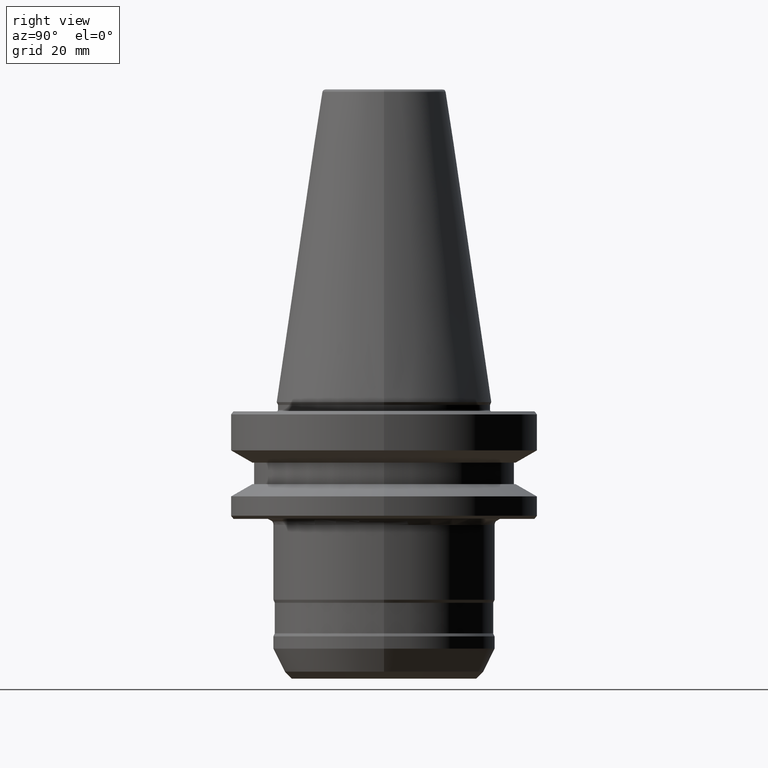
[diagram: clean part render]
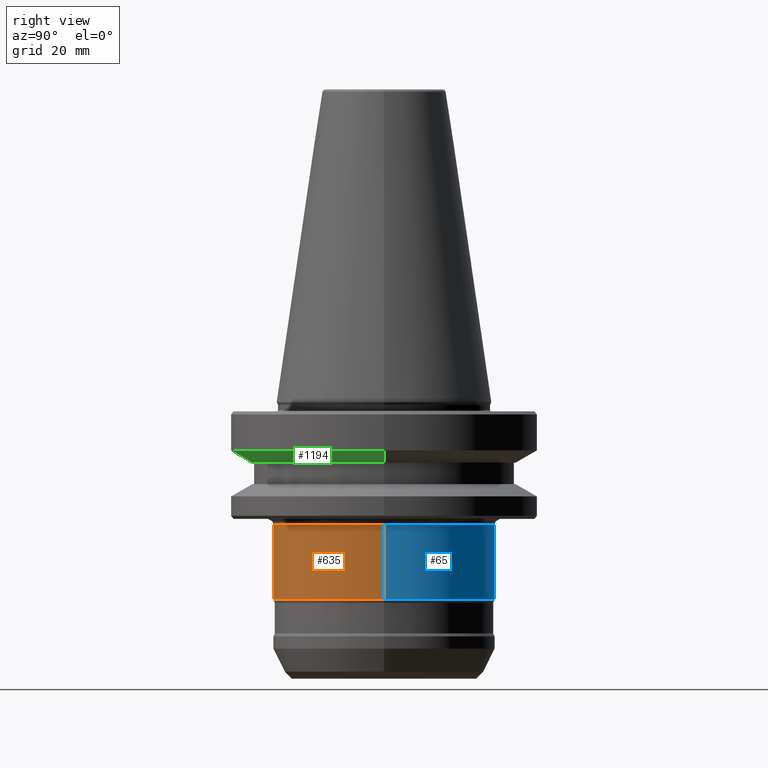
[diagram: same view with three faces highlighted in distinct colors, each labeled with its STEP entity id]
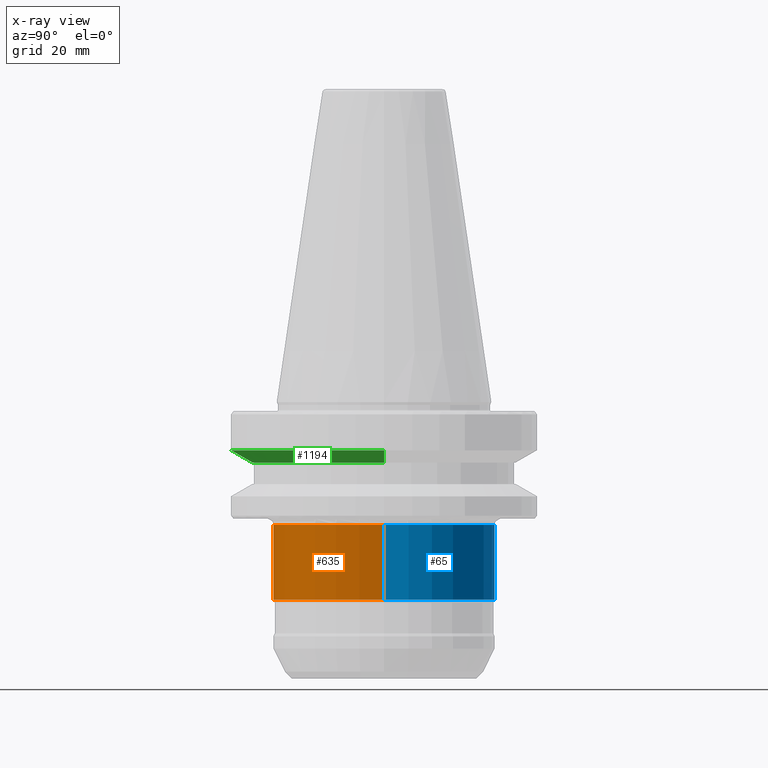
[diagram: x-ray of the same camera — body ghosted, the three highlighted faces saturated]
A machine part, right view with three faces highlighted in distinct colors.
The next image is the same camera in x-ray (body ghosted, the three faces saturated) — at least one of them is partly hidden behind the body in this view.
Their STEP definitions:

[orange] entity #635 — the highlighted cylindrical surface (partial cylindrical patch) has radius 36 mm, axis along (-0, -0, 1).
#14 = ORIENTED_EDGE ( 'NONE', *, *, #412, .T. ) ;
#18 = DIRECTION ( 'NONE',  ( -0.0000000000000000000, -0.0000000000000000000, 1.000000000000000000 ) ) ;
#41 = CIRCLE ( 'NONE', #890, 36.00000000322989300 ) ;
#68 = CARTESIAN_POINT ( 'NONE',  ( -36.00000000322989300, 4.408728477326019100E-015, 114.8991335799905900 ) ) ;
#158 = EDGE_CURVE ( 'NONE', #401, #473, #256, .T. ) ;
#161 = DIRECTION ( 'NONE',  ( -0.0000000000000000000, -0.0000000000000000000, 1.000000000000000000 ) ) ;
#179 = CARTESIAN_POINT ( 'NONE',  ( 0.0000000000000000000, 0.0000000000000000000, -40.00000000001426100 ) ) ;
#213 = DIRECTION ( 'NONE',  ( 1.000000000000000000, 0.0000000000000000000, 0.0000000000000000000 ) ) ;
#252 = CYLINDRICAL_SURFACE ( 'NONE', #993, 36.00000000322989300 ) ;
#256 = LINE ( 'NONE', #68, #995 ) ;
#274 = DIRECTION ( 'NONE',  ( 1.000000000000000000, 0.0000000000000000000, 0.0000000000000000000 ) ) ;
#303 = VERTEX_POINT ( 'NONE', #513 ) ;
#351 = ORIENTED_EDGE ( 'NONE', *, *, #158, .F. ) ;
#369 = DIRECTION ( 'NONE',  ( -0.0000000000000000000, -0.0000000000000000000, 1.000000000000000000 ) ) ;
#401 = VERTEX_POINT ( 'NONE', #1096 ) ;
#412 = EDGE_CURVE ( 'NONE', #401, #303, #1007, .T. ) ;
#420 = VERTEX_POINT ( 'NONE', #1209 ) ;
#435 = EDGE_CURVE ( 'NONE', #473, #420, #41, .T. ) ;
#451 = LINE ( 'NONE', #1237, #926 ) ;
#473 = VERTEX_POINT ( 'NONE', #1017 ) ;
#513 = CARTESIAN_POINT ( 'NONE',  ( 36.00000000322989300, 0.0000000000000000000, -64.33325419940462100 ) ) ;
#519 = FACE_OUTER_BOUND ( 'NONE', #754, .T. ) ;
#527 = ORIENTED_EDGE ( 'NONE', *, *, #1153, .T. ) ;
#549 = CARTESIAN_POINT ( 'NONE',  ( 0.0000000000000000000, 0.0000000000000000000, -64.33325419940462100 ) ) ;
#574 = DIRECTION ( 'NONE',  ( -0.0000000000000000000, -0.0000000000000000000, 1.000000000000000000 ) ) ;
#596 = DIRECTION ( 'NONE',  ( 1.000000000000000000, 0.0000000000000000000, 0.0000000000000000000 ) ) ;
#635 = ADVANCED_FACE ( 'NONE', ( #519 ), #252, .T. ) ;
#639 = CARTESIAN_POINT ( 'NONE',  ( 0.0000000000000000000, 0.0000000000000000000, 114.8991335799905900 ) ) ;
#754 = EDGE_LOOP ( 'NONE', ( #351, #14, #527, #796 ) ) ;
#796 = ORIENTED_EDGE ( 'NONE', *, *, #435, .F. ) ;
#824 = AXIS2_PLACEMENT_3D ( 'NONE', #549, #18, #596 ) ;
#890 = AXIS2_PLACEMENT_3D ( 'NONE', #179, #161, #213 ) ;
#926 = VECTOR ( 'NONE', #574, 1000.000000000000000 ) ;
#993 = AXIS2_PLACEMENT_3D ( 'NONE', #639, #369, #274 ) ;
#995 = VECTOR ( 'NONE', #1070, 1000.000000000000000 ) ;
#1007 = CIRCLE ( 'NONE', #824, 36.00000000322989300 ) ;
#1017 = CARTESIAN_POINT ( 'NONE',  ( -36.00000000322989300, 4.531193157240740900E-015, -40.00000000001426100 ) ) ;
#1070 = DIRECTION ( 'NONE',  ( -0.0000000000000000000, -0.0000000000000000000, 1.000000000000000000 ) ) ;
#1096 = CARTESIAN_POINT ( 'NONE',  ( -36.00000000322989300, 4.408728477326019100E-015, -64.33325419940462100 ) ) ;
#1153 = EDGE_CURVE ( 'NONE', #303, #420, #451, .T. ) ;
#1209 = CARTESIAN_POINT ( 'NONE',  ( 36.00000000322989300, 0.0000000000000000000, -40.00000000001426100 ) ) ;
#1237 = CARTESIAN_POINT ( 'NONE',  ( 36.00000000322989300, 0.0000000000000000000, 114.8991335799905900 ) ) ;

[blue] entity #65 — the highlighted cylindrical surface (partial cylindrical patch) has radius 36 mm, axis along (-0, -0, 1).
#65 = ADVANCED_FACE ( 'NONE', ( #579 ), #830, .T. ) ;
#68 = CARTESIAN_POINT ( 'NONE',  ( -36.00000000322989300, 4.408728477326019100E-015, 114.8991335799905900 ) ) ;
#75 = DIRECTION ( 'NONE',  ( 1.000000000000000000, 0.0000000000000000000, 0.0000000000000000000 ) ) ;
#85 = CARTESIAN_POINT ( 'NONE',  ( 0.0000000000000000000, 0.0000000000000000000, -64.33325419940462100 ) ) ;
#124 = ORIENTED_EDGE ( 'NONE', *, *, #1153, .F. ) ;
#158 = EDGE_CURVE ( 'NONE', #401, #473, #256, .T. ) ;
#200 = DIRECTION ( 'NONE',  ( 1.000000000000000000, 0.0000000000000000000, 0.0000000000000000000 ) ) ;
#239 = EDGE_LOOP ( 'NONE', ( #1196, #868, #1029, #124 ) ) ;
#256 = LINE ( 'NONE', #68, #995 ) ;
#303 = VERTEX_POINT ( 'NONE', #513 ) ;
#401 = VERTEX_POINT ( 'NONE', #1096 ) ;
#420 = VERTEX_POINT ( 'NONE', #1209 ) ;
#451 = LINE ( 'NONE', #1237, #926 ) ;
#473 = VERTEX_POINT ( 'NONE', #1017 ) ;
#513 = CARTESIAN_POINT ( 'NONE',  ( 36.00000000322989300, 0.0000000000000000000, -64.33325419940462100 ) ) ;
#574 = DIRECTION ( 'NONE',  ( -0.0000000000000000000, -0.0000000000000000000, 1.000000000000000000 ) ) ;
#579 = FACE_OUTER_BOUND ( 'NONE', #239, .T. ) ;
#654 = DIRECTION ( 'NONE',  ( -0.0000000000000000000, -0.0000000000000000000, 1.000000000000000000 ) ) ;
#703 = DIRECTION ( 'NONE',  ( -0.0000000000000000000, -0.0000000000000000000, 1.000000000000000000 ) ) ;
#708 = EDGE_CURVE ( 'NONE', #303, #401, #960, .T. ) ;
#724 = AXIS2_PLACEMENT_3D ( 'NONE', #1143, #703, #200 ) ;
#804 = DIRECTION ( 'NONE',  ( -0.0000000000000000000, -0.0000000000000000000, 1.000000000000000000 ) ) ;
#820 = AXIS2_PLACEMENT_3D ( 'NONE', #1224, #654, #75 ) ;
#830 = CYLINDRICAL_SURFACE ( 'NONE', #724, 36.00000000322989300 ) ;
#868 = ORIENTED_EDGE ( 'NONE', *, *, #158, .T. ) ;
#926 = VECTOR ( 'NONE', #574, 1000.000000000000000 ) ;
#960 = CIRCLE ( 'NONE', #1180, 36.00000000322989300 ) ;
#995 = VECTOR ( 'NONE', #1070, 1000.000000000000000 ) ;
#1017 = CARTESIAN_POINT ( 'NONE',  ( -36.00000000322989300, 4.531193157240740900E-015, -40.00000000001426100 ) ) ;
#1029 = ORIENTED_EDGE ( 'NONE', *, *, #1068, .F. ) ;
#1068 = EDGE_CURVE ( 'NONE', #420, #473, #1086, .T. ) ;
#1070 = DIRECTION ( 'NONE',  ( -0.0000000000000000000, -0.0000000000000000000, 1.000000000000000000 ) ) ;
#1086 = CIRCLE ( 'NONE', #820, 36.00000000322989300 ) ;
#1096 = CARTESIAN_POINT ( 'NONE',  ( -36.00000000322989300, 4.408728477326019100E-015, -64.33325419940462100 ) ) ;
#1119 = DIRECTION ( 'NONE',  ( 1.000000000000000000, 0.0000000000000000000, 0.0000000000000000000 ) ) ;
#1143 = CARTESIAN_POINT ( 'NONE',  ( 0.0000000000000000000, 0.0000000000000000000, 114.8991335799905900 ) ) ;
#1153 = EDGE_CURVE ( 'NONE', #303, #420, #451, .T. ) ;
#1180 = AXIS2_PLACEMENT_3D ( 'NONE', #85, #804, #1119 ) ;
#1196 = ORIENTED_EDGE ( 'NONE', *, *, #708, .T. ) ;
#1209 = CARTESIAN_POINT ( 'NONE',  ( 36.00000000322989300, 0.0000000000000000000, -40.00000000001426100 ) ) ;
#1224 = CARTESIAN_POINT ( 'NONE',  ( 0.0000000000000000000, 0.0000000000000000000, -40.00000000001426100 ) ) ;
#1237 = CARTESIAN_POINT ( 'NONE',  ( 36.00000000322989300, 0.0000000000000000000, 114.8991335799905900 ) ) ;

[green] entity #1194 — the highlighted conical surface has half-angle 60 deg.
#37 = CARTESIAN_POINT ( 'NONE',  ( 49.99999999999982200, 0.0000000000000000000, -15.70022000322791900 ) ) ;
#129 = DIRECTION ( 'NONE',  ( -0.8660254037844348200, 1.060575238724902200E-016, 0.5000000000000066600 ) ) ;
#154 = CARTESIAN_POINT ( 'NONE',  ( 49.99999999999982200, 0.0000000000000000000, -15.70022000322791900 ) ) ;
#219 = CARTESIAN_POINT ( 'NONE',  ( -49.99999999999982200, 6.123233995736744000E-015, -15.70022000322791900 ) ) ;
#311 = VERTEX_POINT ( 'NONE', #1053 ) ;
#350 = AXIS2_PLACEMENT_3D ( 'NONE', #838, #690, #907 ) ;
#386 = EDGE_CURVE ( 'NONE', #1199, #311, #818, .T. ) ;
#474 = AXIS2_PLACEMENT_3D ( 'NONE', #487, #1247, #482 ) ;
#482 = DIRECTION ( 'NONE',  ( 1.000000000000000000, 0.0000000000000000000, 0.0000000000000000000 ) ) ;
#487 = CARTESIAN_POINT ( 'NONE',  ( 0.0000000000000000000, 0.0000000000000000000, -15.70022000322791900 ) ) ;
#493 = CARTESIAN_POINT ( 'NONE',  ( -43.07217782649175300, 5.699027233244308300E-015, -19.70000000000073100 ) ) ;
#580 = EDGE_CURVE ( 'NONE', #618, #652, #1087, .T. ) ;
#610 = VECTOR ( 'NONE', #745, 1000.000000000000000 ) ;
#618 = VERTEX_POINT ( 'NONE', #1036 ) ;
#628 = ORIENTED_EDGE ( 'NONE', *, *, #1006, .T. ) ;
#652 = VERTEX_POINT ( 'NONE', #37 ) ;
#677 = FACE_OUTER_BOUND ( 'NONE', #1104, .T. ) ;
#690 = DIRECTION ( 'NONE',  ( -0.0000000000000000000, -0.0000000000000000000, 1.000000000000000000 ) ) ;
#745 = DIRECTION ( 'NONE',  ( 0.8660254037844348200, 0.0000000000000000000, 0.5000000000000066600 ) ) ;
#759 = EDGE_CURVE ( 'NONE', #1199, #618, #927, .T. ) ;
#769 = AXIS2_PLACEMENT_3D ( 'NONE', #839, #807, #870 ) ;
#807 = DIRECTION ( 'NONE',  ( -0.0000000000000000000, -0.0000000000000000000, 1.000000000000000000 ) ) ;
#812 = ORIENTED_EDGE ( 'NONE', *, *, #759, .F. ) ;
#818 = CIRCLE ( 'NONE', #769, 43.07217782649175300 ) ;
#838 = CARTESIAN_POINT ( 'NONE',  ( 0.0000000000000000000, 0.0000000000000000000, -15.70022000322791900 ) ) ;
#839 = CARTESIAN_POINT ( 'NONE',  ( 0.0000000000000000000, 0.0000000000000000000, -19.70000000000073100 ) ) ;
#870 = DIRECTION ( 'NONE',  ( 1.000000000000000000, 0.0000000000000000000, 0.0000000000000000000 ) ) ;
#873 = CONICAL_SURFACE ( 'NONE', #474, 49.99999999999982200, 1.047197551196590100 ) ;
#876 = VECTOR ( 'NONE', #129, 1000.000000000000000 ) ;
#907 = DIRECTION ( 'NONE',  ( 1.000000000000000000, 0.0000000000000000000, 0.0000000000000000000 ) ) ;
#927 = LINE ( 'NONE', #219, #876 ) ;
#1006 = EDGE_CURVE ( 'NONE', #311, #652, #1166, .T. ) ;
#1036 = CARTESIAN_POINT ( 'NONE',  ( -49.99999999999982200, 6.123233995736744000E-015, -15.70022000322791900 ) ) ;
#1043 = ORIENTED_EDGE ( 'NONE', *, *, #580, .F. ) ;
#1045 = ORIENTED_EDGE ( 'NONE', *, *, #386, .T. ) ;
#1053 = CARTESIAN_POINT ( 'NONE',  ( 43.07217782649175300, 0.0000000000000000000, -19.70000000000073100 ) ) ;
#1087 = CIRCLE ( 'NONE', #350, 49.99999999999982200 ) ;
#1104 = EDGE_LOOP ( 'NONE', ( #812, #1045, #628, #1043 ) ) ;
#1166 = LINE ( 'NONE', #154, #610 ) ;
#1194 = ADVANCED_FACE ( 'NONE', ( #677 ), #873, .T. ) ;
#1199 = VERTEX_POINT ( 'NONE', #493 ) ;
#1247 = DIRECTION ( 'NONE',  ( -0.0000000000000000000, -0.0000000000000000000, 1.000000000000000000 ) ) ;